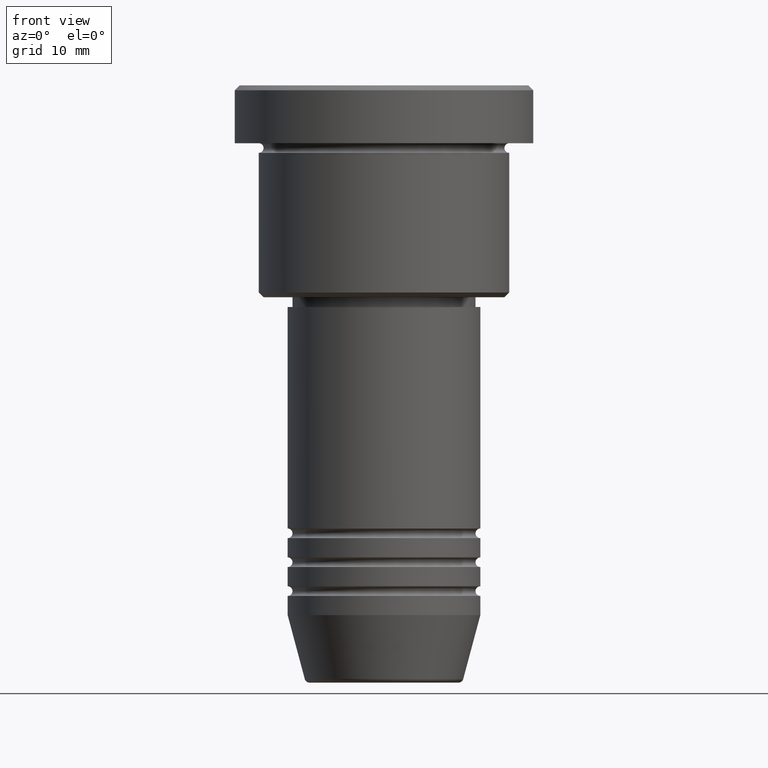
[diagram: clean part render]
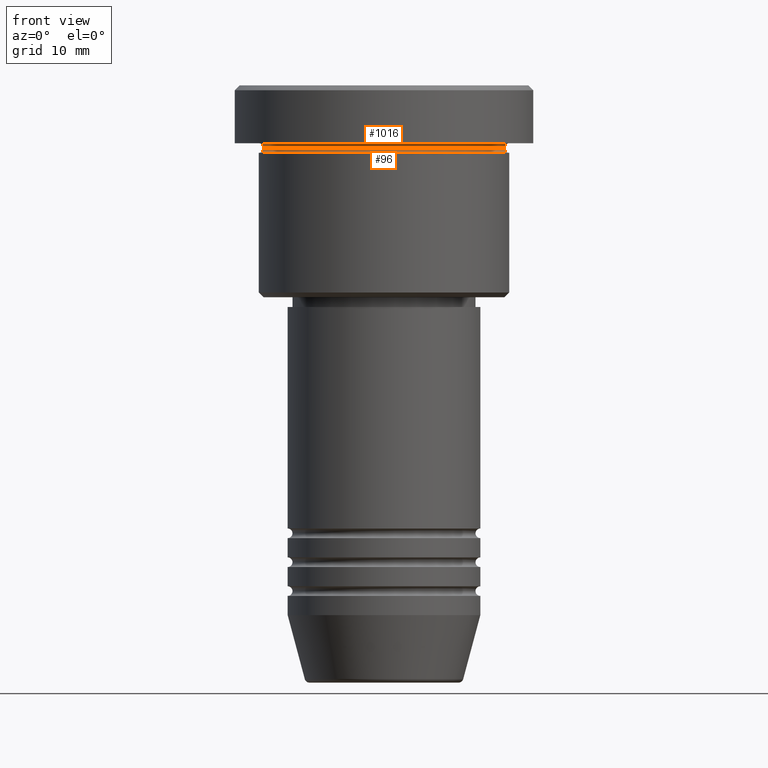
[diagram: same view with one multi-face feature highlighted, each face labeled with its STEP entity id]
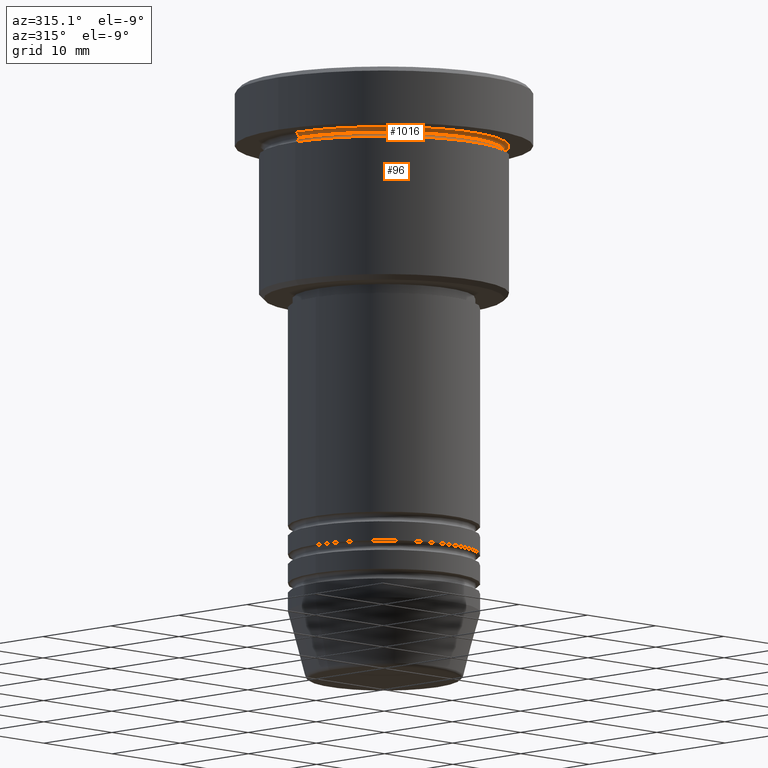
[diagram: same view with one multi-face feature highlighted, each face labeled with its STEP entity id]
A machine part, front view. The highlighted faces form ONE feature: a constant-radius fillet chain: 2 tangent blend faces with common blend radius 0.5 mm. The faces share edges in the B-rep.
A second angle (auxiliary view) of the same feature is appended — it is thin or edge-on in the first view.
Their STEP definitions:
[1] entity #1016 (Torus):
#65 = ORIENTED_EDGE ( 'NONE', *, *, #118, .F. ) ;
#82 = VERTEX_POINT ( 'NONE', #542 ) ;
#103 = CARTESIAN_POINT ( 'NONE',  ( 13.00000000000000000, 1.592040838891559095E-15, -5.999999999999994671 ) ) ;
#105 = DIRECTION ( 'NONE',  ( -1.224646799147353207E-16, 1.000000000000000000, 0.000000000000000000 ) ) ;
#118 = EDGE_CURVE ( 'NONE', #82, #589, #987, .T. ) ;
#130 = CIRCLE ( 'NONE', #491, 13.00000000000000000 ) ;
#148 = EDGE_CURVE ( 'NONE', #589, #1128, #130, .T. ) ;
#205 = AXIS2_PLACEMENT_3D ( 'NONE', #581, #105, #470 ) ;
#226 = DIRECTION ( 'NONE',  ( -0.000000000000000000, -0.000000000000000000, 1.000000000000000000 ) ) ;
#234 = VERTEX_POINT ( 'NONE', #343 ) ;
#299 = ORIENTED_EDGE ( 'NONE', *, *, #499, .T. ) ;
#313 = DIRECTION ( 'NONE',  ( 1.000000000000000000, 0.000000000000000000, 0.000000000000000000 ) ) ;
#343 = CARTESIAN_POINT ( 'NONE',  ( 12.49999999999999822, 0.000000000000000000, -6.499999999999995559 ) ) ;
#427 = DIRECTION ( 'NONE',  ( 0.000000000000000000, 0.000000000000000000, -1.000000000000000000 ) ) ;
#470 = DIRECTION ( 'NONE',  ( -1.000000000000000000, -1.224646799147353454E-16, 0.000000000000000000 ) ) ;
#491 = AXIS2_PLACEMENT_3D ( 'NONE', #568, #586, #1110 ) ;
#496 = CARTESIAN_POINT ( 'NONE',  ( 0.000000000000000000, 0.000000000000000000, -6.499999999999995559 ) ) ;
#499 = EDGE_CURVE ( 'NONE', #82, #234, #513, .T. ) ;
#513 = CIRCLE ( 'NONE', #952, 12.49999999999999822 ) ;
#530 = CIRCLE ( 'NONE', #205, 0.5000000000000004441 ) ;
#542 = CARTESIAN_POINT ( 'NONE',  ( -12.49999999999999822, 1.561424668912875308E-15, -6.499999999999995559 ) ) ;
#568 = CARTESIAN_POINT ( 'NONE',  ( 0.000000000000000000, 0.000000000000000000, -5.999999999999995559 ) ) ;
#573 = CARTESIAN_POINT ( 'NONE',  ( 0.000000000000000000, 0.000000000000000000, -6.499999999999995559 ) ) ;
#581 = CARTESIAN_POINT ( 'NONE',  ( 13.00000000000000000, 1.592040838891559095E-15, -6.499999999999995559 ) ) ;
#586 = DIRECTION ( 'NONE',  ( -0.000000000000000000, -0.000000000000000000, 1.000000000000000000 ) ) ;
#589 = VERTEX_POINT ( 'NONE', #1059 ) ;
#599 = ORIENTED_EDGE ( 'NONE', *, *, #872, .T. ) ;
#624 = AXIS2_PLACEMENT_3D ( 'NONE', #770, #852, #1126 ) ;
#651 = AXIS2_PLACEMENT_3D ( 'NONE', #496, #427, #774 ) ;
#770 = CARTESIAN_POINT ( 'NONE',  ( -13.00000000000000000, 0.000000000000000000, -6.499999999999995559 ) ) ;
#774 = DIRECTION ( 'NONE',  ( -1.000000000000000000, 0.000000000000000000, 0.000000000000000000 ) ) ;
#805 = ORIENTED_EDGE ( 'NONE', *, *, #148, .F. ) ;
#852 = DIRECTION ( 'NONE',  ( -0.000000000000000000, -1.000000000000000000, -0.000000000000000000 ) ) ;
#872 = EDGE_CURVE ( 'NONE', #234, #1128, #530, .T. ) ;
#881 = FACE_OUTER_BOUND ( 'NONE', #942, .T. ) ;
#942 = EDGE_LOOP ( 'NONE', ( #299, #599, #805, #65 ) ) ;
#952 = AXIS2_PLACEMENT_3D ( 'NONE', #573, #226, #313 ) ;
#987 = CIRCLE ( 'NONE', #624, 0.5000000000000004441 ) ;
#1016 = ADVANCED_FACE ( 'NONE', ( #881 ), #1081, .F. ) ;
#1059 = CARTESIAN_POINT ( 'NONE',  ( -13.00000000000000000, 0.000000000000000000, -5.999999999999994671 ) ) ;
#1081 = TOROIDAL_SURFACE ( 'NONE', #651, 13.00000000000000000, 0.5000000000000000000 ) ;
#1110 = DIRECTION ( 'NONE',  ( -1.000000000000000000, 0.000000000000000000, 0.000000000000000000 ) ) ;
#1126 = DIRECTION ( 'NONE',  ( 0.000000000000000000, 0.000000000000000000, -1.000000000000000000 ) ) ;
#1128 = VERTEX_POINT ( 'NONE', #103 ) ;
[2] entity #96 (Torus):
#43 = DIRECTION ( 'NONE',  ( -0.000000000000000000, -0.000000000000000000, 1.000000000000000000 ) ) ;
#82 = VERTEX_POINT ( 'NONE', #542 ) ;
#92 = AXIS2_PLACEMENT_3D ( 'NONE', #1048, #412, #1054 ) ;
#93 = VERTEX_POINT ( 'NONE', #458 ) ;
#96 = ADVANCED_FACE ( 'NONE', ( #825 ), #489, .F. ) ;
#104 = ORIENTED_EDGE ( 'NONE', *, *, #606, .T. ) ;
#136 = EDGE_CURVE ( 'NONE', #234, #93, #856, .T. ) ;
#143 = ORIENTED_EDGE ( 'NONE', *, *, #499, .F. ) ;
#218 = AXIS2_PLACEMENT_3D ( 'NONE', #1116, #946, #1137 ) ;
#226 = DIRECTION ( 'NONE',  ( -0.000000000000000000, -0.000000000000000000, 1.000000000000000000 ) ) ;
#227 = DIRECTION ( 'NONE',  ( 0.000000000000000000, -1.000000000000000000, 0.000000000000000000 ) ) ;
#234 = VERTEX_POINT ( 'NONE', #343 ) ;
#313 = DIRECTION ( 'NONE',  ( 1.000000000000000000, 0.000000000000000000, 0.000000000000000000 ) ) ;
#343 = CARTESIAN_POINT ( 'NONE',  ( 12.49999999999999822, 0.000000000000000000, -6.499999999999995559 ) ) ;
#358 = CIRCLE ( 'NONE', #417, 13.00000000000000000 ) ;
#412 = DIRECTION ( 'NONE',  ( 1.224646799147353207E-16, 1.000000000000000000, 0.000000000000000000 ) ) ;
#417 = AXIS2_PLACEMENT_3D ( 'NONE', #714, #43, #1068 ) ;
#458 = CARTESIAN_POINT ( 'NONE',  ( 13.00000000000000000, 0.000000000000000000, -6.999999999999995559 ) ) ;
#484 = DIRECTION ( 'NONE',  ( 0.000000000000000000, 0.000000000000000000, -1.000000000000000000 ) ) ;
#489 = TOROIDAL_SURFACE ( 'NONE', #218, 13.00000000000000000, 0.5000000000000000000 ) ;
#499 = EDGE_CURVE ( 'NONE', #82, #234, #513, .T. ) ;
#513 = CIRCLE ( 'NONE', #952, 12.49999999999999822 ) ;
#542 = CARTESIAN_POINT ( 'NONE',  ( -12.49999999999999822, 1.561424668912875308E-15, -6.499999999999995559 ) ) ;
#573 = CARTESIAN_POINT ( 'NONE',  ( 0.000000000000000000, 0.000000000000000000, -6.499999999999995559 ) ) ;
#606 = EDGE_CURVE ( 'NONE', #915, #93, #358, .T. ) ;
#614 = ORIENTED_EDGE ( 'NONE', *, *, #928, .T. ) ;
#633 = CARTESIAN_POINT ( 'NONE',  ( -13.00000000000000000, 1.592040838891559095E-15, -6.999999999999995559 ) ) ;
#689 = CIRCLE ( 'NONE', #92, 0.5000000000000004441 ) ;
#714 = CARTESIAN_POINT ( 'NONE',  ( 0.000000000000000000, 0.000000000000000000, -6.999999999999995559 ) ) ;
#764 = CARTESIAN_POINT ( 'NONE',  ( 13.00000000000000000, 0.000000000000000000, -6.499999999999995559 ) ) ;
#786 = EDGE_LOOP ( 'NONE', ( #143, #614, #104, #923 ) ) ;
#825 = FACE_OUTER_BOUND ( 'NONE', #786, .T. ) ;
#856 = CIRCLE ( 'NONE', #914, 0.5000000000000004441 ) ;
#914 = AXIS2_PLACEMENT_3D ( 'NONE', #764, #227, #484 ) ;
#915 = VERTEX_POINT ( 'NONE', #633 ) ;
#923 = ORIENTED_EDGE ( 'NONE', *, *, #136, .F. ) ;
#928 = EDGE_CURVE ( 'NONE', #82, #915, #689, .T. ) ;
#946 = DIRECTION ( 'NONE',  ( -0.000000000000000000, -0.000000000000000000, 1.000000000000000000 ) ) ;
#952 = AXIS2_PLACEMENT_3D ( 'NONE', #573, #226, #313 ) ;
#1048 = CARTESIAN_POINT ( 'NONE',  ( -13.00000000000000000, 1.592040838891559095E-15, -6.499999999999995559 ) ) ;
#1054 = DIRECTION ( 'NONE',  ( -1.000000000000000000, 1.224646799147353454E-16, 0.000000000000000000 ) ) ;
#1068 = DIRECTION ( 'NONE',  ( 1.000000000000000000, 0.000000000000000000, 0.000000000000000000 ) ) ;
#1116 = CARTESIAN_POINT ( 'NONE',  ( 0.000000000000000000, 0.000000000000000000, -6.499999999999995559 ) ) ;
#1137 = DIRECTION ( 'NONE',  ( 1.000000000000000000, 0.000000000000000000, 0.000000000000000000 ) ) ;